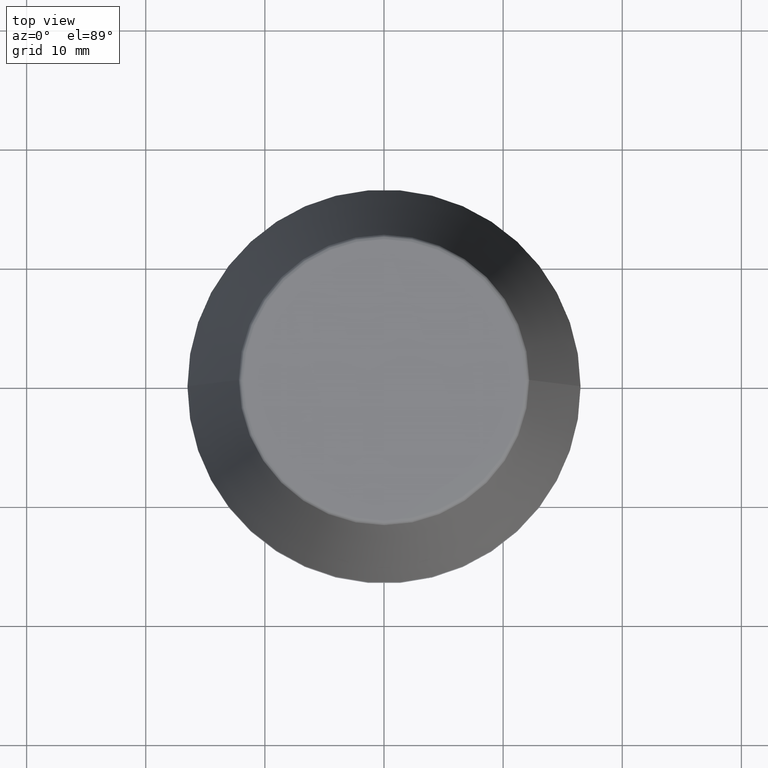
[diagram: clean part render]
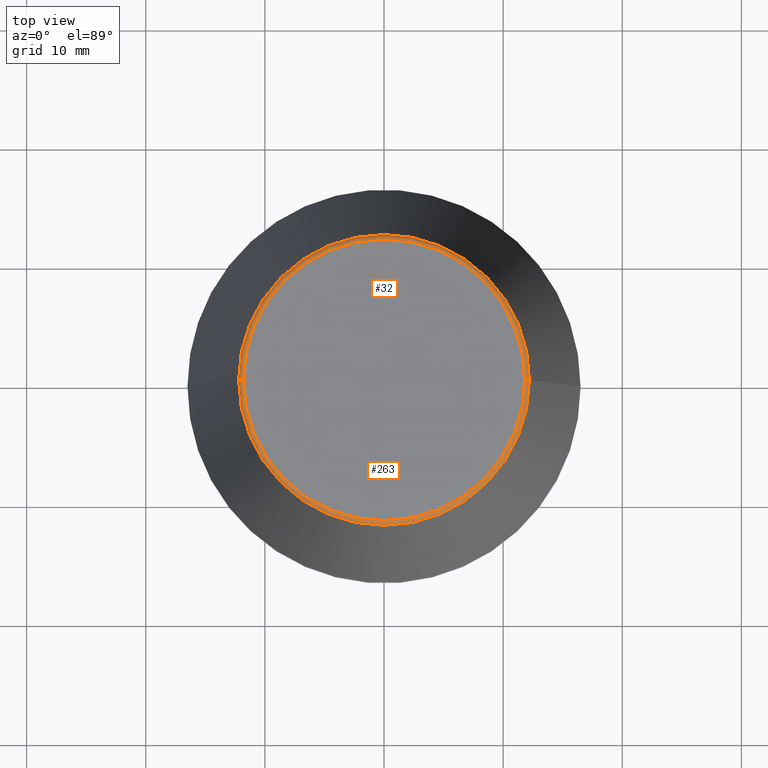
[diagram: same view with one multi-face feature highlighted, each face labeled with its STEP entity id]
A machine part, top view. The highlighted faces form ONE feature: a constant-radius fillet chain: 2 tangent blend faces with common blend radius 0.4 mm. The faces share edges in the B-rep.
Their STEP definitions:
[1] entity #263 (Torus):
#5 = CARTESIAN_POINT ( 'NONE',  ( -11.80989888411031400, 1.446295486667959300E-015, 39.60000000000000100 ) ) ;
#12 = AXIS2_PLACEMENT_3D ( 'NONE', #77, #336, #301 ) ;
#17 = DIRECTION ( 'NONE',  ( 1.000000000000000000, 0.0000000000000000000, 0.0000000000000000000 ) ) ;
#24 = DIRECTION ( 'NONE',  ( -1.000000000000000000, 1.224646799147352500E-016, 0.0000000000000000000 ) ) ;
#29 = AXIS2_PLACEMENT_3D ( 'NONE', #73, #275, #105 ) ;
#30 = CARTESIAN_POINT ( 'NONE',  ( 12.20600611160694300, 1.757755848304969800E-015, 39.65566924038402900 ) ) ;
#54 = EDGE_LOOP ( 'NONE', ( #213, #112, #103, #96 ) ) ;
#67 = AXIS2_PLACEMENT_3D ( 'NONE', #367, #198, #17 ) ;
#73 = CARTESIAN_POINT ( 'NONE',  ( 0.0000000000000000000, 0.0000000000000000000, 39.65566924038402900 ) ) ;
#77 = CARTESIAN_POINT ( 'NONE',  ( 0.0000000000000000000, 0.0000000000000000000, 39.60000000000000100 ) ) ;
#96 = ORIENTED_EDGE ( 'NONE', *, *, #245, .F. ) ;
#103 = ORIENTED_EDGE ( 'NONE', *, *, #170, .T. ) ;
#104 = DIRECTION ( 'NONE',  ( 0.0000000000000000000, 0.0000000000000000000, -1.000000000000000000 ) ) ;
#105 = DIRECTION ( 'NONE',  ( 1.000000000000000000, 0.0000000000000000000, 0.0000000000000000000 ) ) ;
#112 = ORIENTED_EDGE ( 'NONE', *, *, #316, .T. ) ;
#118 = AXIS2_PLACEMENT_3D ( 'NONE', #165, #329, #104 ) ;
#138 = CIRCLE ( 'NONE', #29, 12.20600611160694300 ) ;
#139 = VERTEX_POINT ( 'NONE', #30 ) ;
#147 = CIRCLE ( 'NONE', #67, 11.80989888411031400 ) ;
#163 = VERTEX_POINT ( 'NONE', #192 ) ;
#165 = CARTESIAN_POINT ( 'NONE',  ( 11.80989888411031400, 0.0000000000000000000, 39.60000000000000100 ) ) ;
#170 = EDGE_CURVE ( 'NONE', #139, #178, #172, .T. ) ;
#172 = CIRCLE ( 'NONE', #118, 0.4000000000000045200 ) ;
#178 = VERTEX_POINT ( 'NONE', #314 ) ;
#192 = CARTESIAN_POINT ( 'NONE',  ( -12.20600611160694300, 0.0000000000000000000, 39.65566924038402900 ) ) ;
#198 = DIRECTION ( 'NONE',  ( -0.0000000000000000000, -0.0000000000000000000, 1.000000000000000000 ) ) ;
#207 = EDGE_CURVE ( 'NONE', #163, #351, #304, .T. ) ;
#213 = ORIENTED_EDGE ( 'NONE', *, *, #207, .F. ) ;
#220 = TOROIDAL_SURFACE ( 'NONE', #12, 11.80989888411031400, 0.4000000000000026900 ) ;
#221 = AXIS2_PLACEMENT_3D ( 'NONE', #5, #346, #24 ) ;
#241 = FACE_OUTER_BOUND ( 'NONE', #54, .T. ) ;
#245 = EDGE_CURVE ( 'NONE', #351, #178, #147, .T. ) ;
#254 = CARTESIAN_POINT ( 'NONE',  ( -11.80989888411031400, 1.470550059081603400E-015, 40.00000000000000700 ) ) ;
#263 = ADVANCED_FACE ( 'NONE', ( #241 ), #220, .T. ) ;
#275 = DIRECTION ( 'NONE',  ( -0.0000000000000000000, -0.0000000000000000000, 1.000000000000000000 ) ) ;
#301 = DIRECTION ( 'NONE',  ( 1.000000000000000000, 0.0000000000000000000, 0.0000000000000000000 ) ) ;
#304 = CIRCLE ( 'NONE', #221, 0.4000000000000028000 ) ;
#314 = CARTESIAN_POINT ( 'NONE',  ( 11.80989888411031400, 0.0000000000000000000, 40.00000000000000700 ) ) ;
#316 = EDGE_CURVE ( 'NONE', #163, #139, #138, .T. ) ;
#329 = DIRECTION ( 'NONE',  ( 0.0000000000000000000, -1.000000000000000000, 0.0000000000000000000 ) ) ;
#336 = DIRECTION ( 'NONE',  ( -0.0000000000000000000, -0.0000000000000000000, 1.000000000000000000 ) ) ;
#346 = DIRECTION ( 'NONE',  ( 1.224646799147353200E-016, 1.000000000000000000, 0.0000000000000000000 ) ) ;
#351 = VERTEX_POINT ( 'NONE', #254 ) ;
#367 = CARTESIAN_POINT ( 'NONE',  ( 0.0000000000000000000, 0.0000000000000000000, 40.00000000000000700 ) ) ;
[2] entity #32 (Torus):
#5 = CARTESIAN_POINT ( 'NONE',  ( -11.80989888411031400, 1.446295486667959300E-015, 39.60000000000000100 ) ) ;
#8 = ORIENTED_EDGE ( 'NONE', *, *, #207, .T. ) ;
#24 = DIRECTION ( 'NONE',  ( -1.000000000000000000, 1.224646799147352500E-016, 0.0000000000000000000 ) ) ;
#26 = DIRECTION ( 'NONE',  ( 1.000000000000000000, 0.0000000000000000000, 0.0000000000000000000 ) ) ;
#30 = CARTESIAN_POINT ( 'NONE',  ( 12.20600611160694300, 1.757755848304969800E-015, 39.65566924038402900 ) ) ;
#32 = ADVANCED_FACE ( 'NONE', ( #109 ), #325, .T. ) ;
#33 = AXIS2_PLACEMENT_3D ( 'NONE', #108, #299, #135 ) ;
#74 = CARTESIAN_POINT ( 'NONE',  ( 0.0000000000000000000, 0.0000000000000000000, 39.60000000000000100 ) ) ;
#75 = AXIS2_PLACEMENT_3D ( 'NONE', #375, #203, #26 ) ;
#81 = CIRCLE ( 'NONE', #33, 12.20600611160694300 ) ;
#104 = DIRECTION ( 'NONE',  ( 0.0000000000000000000, 0.0000000000000000000, -1.000000000000000000 ) ) ;
#108 = CARTESIAN_POINT ( 'NONE',  ( 0.0000000000000000000, 0.0000000000000000000, 39.65566924038402900 ) ) ;
#109 = FACE_OUTER_BOUND ( 'NONE', #358, .T. ) ;
#110 = DIRECTION ( 'NONE',  ( -0.0000000000000000000, -0.0000000000000000000, 1.000000000000000000 ) ) ;
#118 = AXIS2_PLACEMENT_3D ( 'NONE', #165, #329, #104 ) ;
#130 = ORIENTED_EDGE ( 'NONE', *, *, #170, .F. ) ;
#135 = DIRECTION ( 'NONE',  ( 1.000000000000000000, 0.0000000000000000000, 0.0000000000000000000 ) ) ;
#139 = VERTEX_POINT ( 'NONE', #30 ) ;
#157 = CIRCLE ( 'NONE', #75, 11.80989888411031400 ) ;
#163 = VERTEX_POINT ( 'NONE', #192 ) ;
#165 = CARTESIAN_POINT ( 'NONE',  ( 11.80989888411031400, 0.0000000000000000000, 39.60000000000000100 ) ) ;
#170 = EDGE_CURVE ( 'NONE', #139, #178, #172, .T. ) ;
#172 = CIRCLE ( 'NONE', #118, 0.4000000000000045200 ) ;
#178 = VERTEX_POINT ( 'NONE', #314 ) ;
#192 = CARTESIAN_POINT ( 'NONE',  ( -12.20600611160694300, 0.0000000000000000000, 39.65566924038402900 ) ) ;
#195 = ORIENTED_EDGE ( 'NONE', *, *, #238, .T. ) ;
#203 = DIRECTION ( 'NONE',  ( -0.0000000000000000000, -0.0000000000000000000, 1.000000000000000000 ) ) ;
#207 = EDGE_CURVE ( 'NONE', #163, #351, #304, .T. ) ;
#221 = AXIS2_PLACEMENT_3D ( 'NONE', #5, #346, #24 ) ;
#228 = EDGE_CURVE ( 'NONE', #178, #351, #157, .T. ) ;
#238 = EDGE_CURVE ( 'NONE', #139, #163, #81, .T. ) ;
#254 = CARTESIAN_POINT ( 'NONE',  ( -11.80989888411031400, 1.470550059081603400E-015, 40.00000000000000700 ) ) ;
#268 = ORIENTED_EDGE ( 'NONE', *, *, #228, .F. ) ;
#296 = AXIS2_PLACEMENT_3D ( 'NONE', #74, #110, #333 ) ;
#299 = DIRECTION ( 'NONE',  ( -0.0000000000000000000, -0.0000000000000000000, 1.000000000000000000 ) ) ;
#304 = CIRCLE ( 'NONE', #221, 0.4000000000000028000 ) ;
#314 = CARTESIAN_POINT ( 'NONE',  ( 11.80989888411031400, 0.0000000000000000000, 40.00000000000000700 ) ) ;
#325 = TOROIDAL_SURFACE ( 'NONE', #296, 11.80989888411031400, 0.4000000000000026900 ) ;
#329 = DIRECTION ( 'NONE',  ( 0.0000000000000000000, -1.000000000000000000, 0.0000000000000000000 ) ) ;
#333 = DIRECTION ( 'NONE',  ( 1.000000000000000000, 0.0000000000000000000, 0.0000000000000000000 ) ) ;
#346 = DIRECTION ( 'NONE',  ( 1.224646799147353200E-016, 1.000000000000000000, 0.0000000000000000000 ) ) ;
#351 = VERTEX_POINT ( 'NONE', #254 ) ;
#358 = EDGE_LOOP ( 'NONE', ( #195, #8, #268, #130 ) ) ;
#375 = CARTESIAN_POINT ( 'NONE',  ( 0.0000000000000000000, 0.0000000000000000000, 40.00000000000000700 ) ) ;